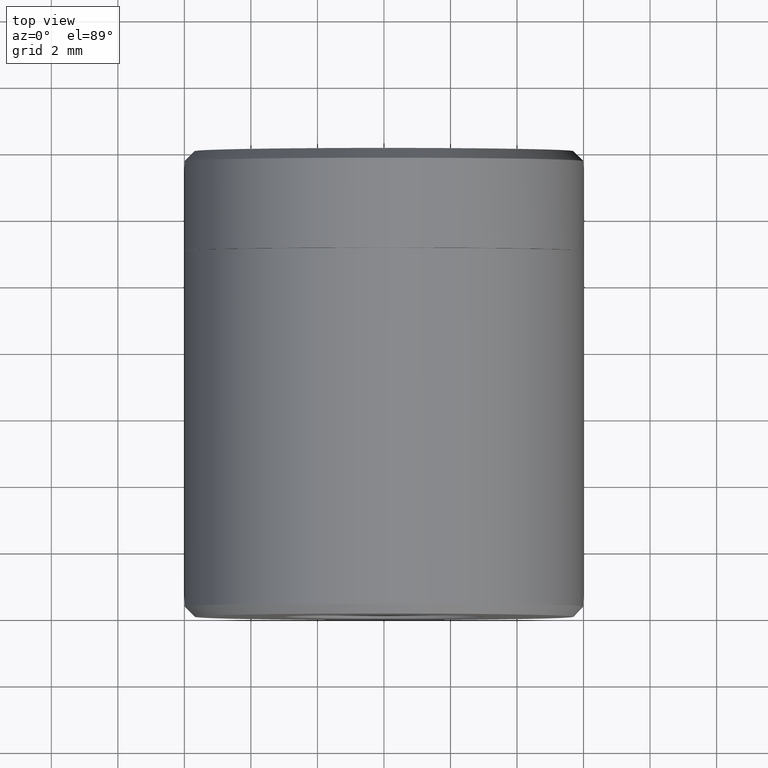
[diagram: clean part render]
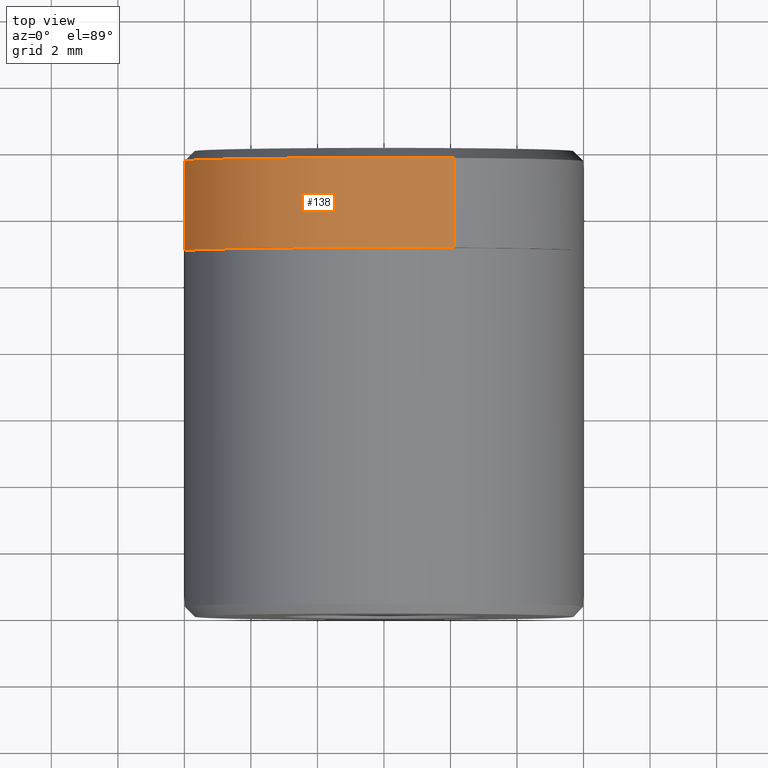
[diagram: same view with one face highlighted and labeled with its STEP entity id]
A machine part, top view. The second image highlights one B-rep face of the part: STEP entity #138.
In plain terms, the highlighted face is a freeform B-spline surface patch.
Its self-contained STEP definition (entity closure, byte-faithful):
#44=CARTESIAN_POINT('',(2.109708197967407,13.767504099999998,5.616862408803518));
#45=CARTESIAN_POINT('',(1.265936921281901,13.767504100000000,5.933785105154919));
#46=CARTESIAN_POINT('',(0.366291298257681,13.767504100000000,5.988809788665995));
#47=CARTESIAN_POINT('',(-5.622518490408318,13.767504100000002,6.355101086923678));
#48=CARTESIAN_POINT('',(-5.988809788665998,13.767504100000000,0.366291298257679));
#49=CARTESIAN_POINT('',(2.109708197967407,10.930812397499997,5.616862408803518));
#50=CARTESIAN_POINT('',(1.265936921281901,10.930812397500004,5.933785105154919));
#51=CARTESIAN_POINT('',(0.366291298257681,10.930812397500000,5.988809788665995));
#52=CARTESIAN_POINT('',(-5.622518490408318,10.930812397499999,6.355101086923678));
#53=CARTESIAN_POINT('',(-5.988809788665998,10.930812397500000,0.366291298257679));
#61=(BOUNDED_SURFACE()B_SPLINE_SURFACE(2,1,((#44,#49),(#45,#50),(#46,#51),(#47,#52),(#48,#53)),.UNSPECIFIED.,.F.,.F.,.U.)B_SPLINE_SURFACE_WITH_KNOTS((3,2,3),(2,2),(0.0,1.988225430761706,11.929352584570230),(0.0,2.836691702500005),.UNSPECIFIED.)GEOMETRIC_REPRESENTATION_ITEM()RATIONAL_B_SPLINE_SURFACE(((0.906274169979695,0.906274169979695),(0.941421356237309,0.941421356237309),(1.0,1.0),(0.707106781186548,0.707106781186548),(1.0,1.0)))REPRESENTATION_ITEM('')SURFACE());
#62=CARTESIAN_POINT('',(2.109705394561436,13.700003999997580,5.616862927662621));
#63=VERTEX_POINT('',#62);
#64=CARTESIAN_POINT('',(0.0,13.700004000000000,5.999999999999997));
#65=VERTEX_POINT('',#64);
#66=CARTESIAN_POINT('',(2.109705394561436,13.700003999997577,5.616862927662622));
#67=CARTESIAN_POINT('',(1.089642866699022,13.700004000000000,5.999999999999997));
#68=CARTESIAN_POINT('',(0.0,13.700004000000000,5.999999999999997));
#76=(BOUNDED_CURVE()B_SPLINE_CURVE(2,(#66,#67,#68),.UNSPECIFIED.,.F.,.U.)B_SPLINE_CURVE_WITH_KNOTS((3,3),(0.440284244788677,0.500000000000000),.UNSPECIFIED.)CURVE()GEOMETRIC_REPRESENTATION_ITEM()RATIONAL_B_SPLINE_CURVE((0.893499645059353,0.930038640969118,1.0))REPRESENTATION_ITEM(''));
#77=EDGE_CURVE('',#63,#65,#76,.T.);
#78=ORIENTED_EDGE('',*,*,#77,.T.);
#79=CARTESIAN_POINT('',(-5.988809289598700,13.700003999999559,0.366291267734830));
#80=VERTEX_POINT('',#79);
#81=CARTESIAN_POINT('',(0.0,13.700004000000000,5.999999999999997));
#82=CARTESIAN_POINT('',(-5.644236401428818,13.700004000000000,5.999999999999998));
#83=CARTESIAN_POINT('',(-5.988809289598700,13.700003999999563,0.366291267734830));
#91=(BOUNDED_CURVE()B_SPLINE_CURVE(2,(#81,#82,#83),.UNSPECIFIED.,.F.,.U.)B_SPLINE_CURVE_WITH_KNOTS((3,3),(0.500000000000000,0.739332962241805),.UNSPECIFIED.)CURVE()GEOMETRIC_REPRESENTATION_ITEM()RATIONAL_B_SPLINE_CURVE((1.0,0.719603993283357,0.976072041672852))REPRESENTATION_ITEM(''));
#92=EDGE_CURVE('',#65,#80,#91,.T.);
#93=ORIENTED_EDGE('',*,*,#92,.T.);
#94=CARTESIAN_POINT('',(-5.988809419119264,11.0,0.366289150076982));
#95=VERTEX_POINT('',#94);
#96=CARTESIAN_POINT('',(-5.988809289598700,13.700003999999559,0.366291267734830));
#97=CARTESIAN_POINT('',(-5.988809419119264,11.0,0.366289150076982));
#98=QUASI_UNIFORM_CURVE('',1,(#96,#97),.UNSPECIFIED.,.F.,.U.);
#99=EDGE_CURVE('',#80,#95,#98,.T.);
#100=ORIENTED_EDGE('',*,*,#99,.T.);
#101=CARTESIAN_POINT('',(0.0,11.0,5.999999999999997));
#102=VERTEX_POINT('',#101);
#103=CARTESIAN_POINT('',(0.0,11.0,5.999999999999997));
#104=CARTESIAN_POINT('',(-5.644238400978692,11.0,5.999999999999998));
#105=CARTESIAN_POINT('',(-5.988809419119264,11.000000000000002,0.366289150076982));
#113=(BOUNDED_CURVE()B_SPLINE_CURVE(2,(#103,#104,#105),.UNSPECIFIED.,.F.,.U.)B_SPLINE_CURVE_WITH_KNOTS((3,3),(0.500000000000000,0.739333023254904),.UNSPECIFIED.)CURVE()GEOMETRIC_REPRESENTATION_ITEM()RATIONAL_B_SPLINE_CURVE((1.0,0.719603921802065,0.976072172435572))REPRESENTATION_ITEM(''));
#114=EDGE_CURVE('',#102,#95,#113,.T.);
#115=ORIENTED_EDGE('',*,*,#114,.F.);
#116=CARTESIAN_POINT('',(2.109705874092362,11.0,5.616862747550018));
#117=VERTEX_POINT('',#116);
#118=CARTESIAN_POINT('',(2.109705874092362,10.999999999999998,5.616862747550018));
#119=CARTESIAN_POINT('',(1.089643131266459,11.000000000000004,5.999999999999998));
#120=CARTESIAN_POINT('',(0.0,11.0,5.999999999999997));
#128=(BOUNDED_CURVE()B_SPLINE_CURVE(2,(#118,#119,#120),.UNSPECIFIED.,.F.,.U.)B_SPLINE_CURVE_WITH_KNOTS((3,3),(0.440284231303951,0.500000000000000),.UNSPECIFIED.)CURVE()GEOMETRIC_REPRESENTATION_ITEM()RATIONAL_B_SPLINE_CURVE((0.893499628557232,0.930038625170779,1.0))REPRESENTATION_ITEM(''));
#129=EDGE_CURVE('',#117,#102,#128,.T.);
#130=ORIENTED_EDGE('',*,*,#129,.F.);
#131=CARTESIAN_POINT('',(2.109705394561436,13.700003999997580,5.616862927662621));
#132=CARTESIAN_POINT('',(2.109705874092362,11.0,5.616862747550018));
#133=QUASI_UNIFORM_CURVE('',1,(#131,#132),.UNSPECIFIED.,.F.,.U.);
#134=EDGE_CURVE('',#63,#117,#133,.T.);
#135=ORIENTED_EDGE('',*,*,#134,.F.);
#136=EDGE_LOOP('',(#78,#93,#100,#115,#130,#135));
#137=FACE_OUTER_BOUND('',#136,.T.);
#138=ADVANCED_FACE('',(#137),#61,.T.);